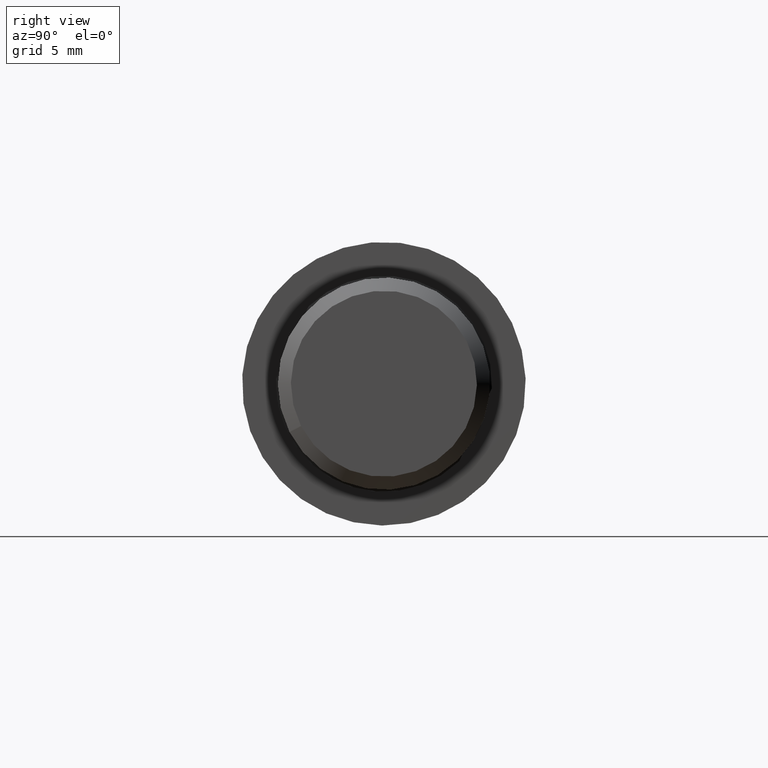
[diagram: clean part render]
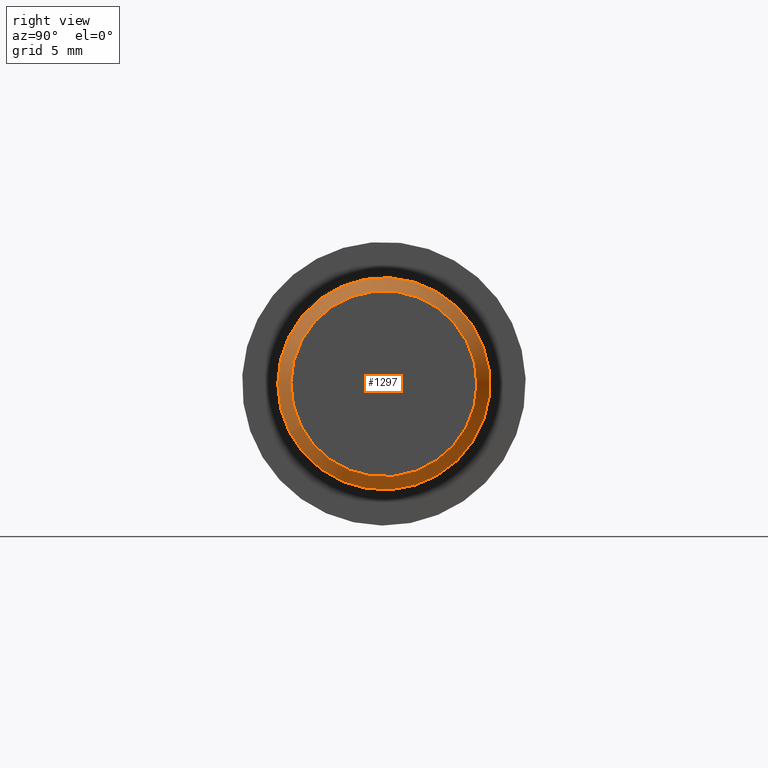
[diagram: same view with one face highlighted and labeled with its STEP entity id]
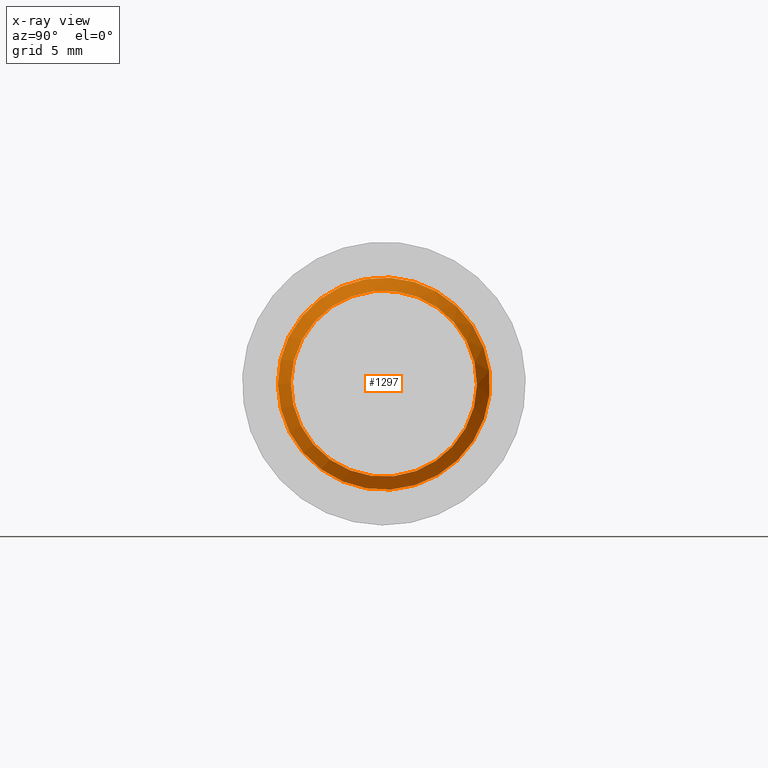
[diagram: x-ray of the same camera — body ghosted, the highlighted face saturated]
A machine part, right view. The second image highlights one B-rep face of the part: STEP entity #1297.
The next image is the same camera in x-ray: the body ghosted, the highlighted face saturated — about 0% of this face is hidden behind the body in this view.
In plain terms, the highlighted conical surface has half-angle 45 deg.
Its self-contained STEP definition (entity closure, byte-faithful):
#1270=CARTESIAN_POINT('',(27.750000000000007,0.0,0.0));
#1271=DIRECTION('',(-1.0,0.0,0.0));
#1272=DIRECTION('',(0.0,0.890856586006212,0.454284649938071));
#1273=AXIS2_PLACEMENT_3D('',#1270,#1271,#1272);
#1274=CONICAL_SURFACE('',#1273,4.564000000000001,44.999999999999993);
#1275=CARTESIAN_POINT('',(28.050000000000004,-3.79861248273049,-1.937069747335934));
#1276=VERTEX_POINT('',#1275);
#1277=CARTESIAN_POINT('',(28.050000000000004,0.0,0.0));
#1278=DIRECTION('',(-1.0,0.0,0.0));
#1279=DIRECTION('',(0.0,0.890856586006212,0.454284649938071));
#1280=AXIS2_PLACEMENT_3D('',#1277,#1278,#1279);
#1281=CIRCLE('',#1280,4.263999999999999);
#1282=EDGE_CURVE('',#1276,#1276,#1281,.T.);
#1283=ORIENTED_EDGE('',*,*,#1282,.T.);
#1284=EDGE_LOOP('',(#1283));
#1285=FACE_OUTER_BOUND('',#1284,.T.);
#1286=CARTESIAN_POINT('',(27.450000000000006,-4.333126434334218,-2.209640537298778));
#1287=VERTEX_POINT('',#1286);
#1288=CARTESIAN_POINT('',(27.450000000000006,0.0,0.0));
#1289=DIRECTION('',(1.0,0.0,0.0));
#1290=DIRECTION('',(0.0,0.890856586006213,0.454284649938071));
#1291=AXIS2_PLACEMENT_3D('',#1288,#1289,#1290);
#1292=CIRCLE('',#1291,4.864);
#1293=EDGE_CURVE('',#1287,#1287,#1292,.T.);
#1294=ORIENTED_EDGE('',*,*,#1293,.T.);
#1295=EDGE_LOOP('',(#1294));
#1296=FACE_BOUND('',#1295,.T.);
#1297=ADVANCED_FACE('',(#1285,#1296),#1274,.T.);